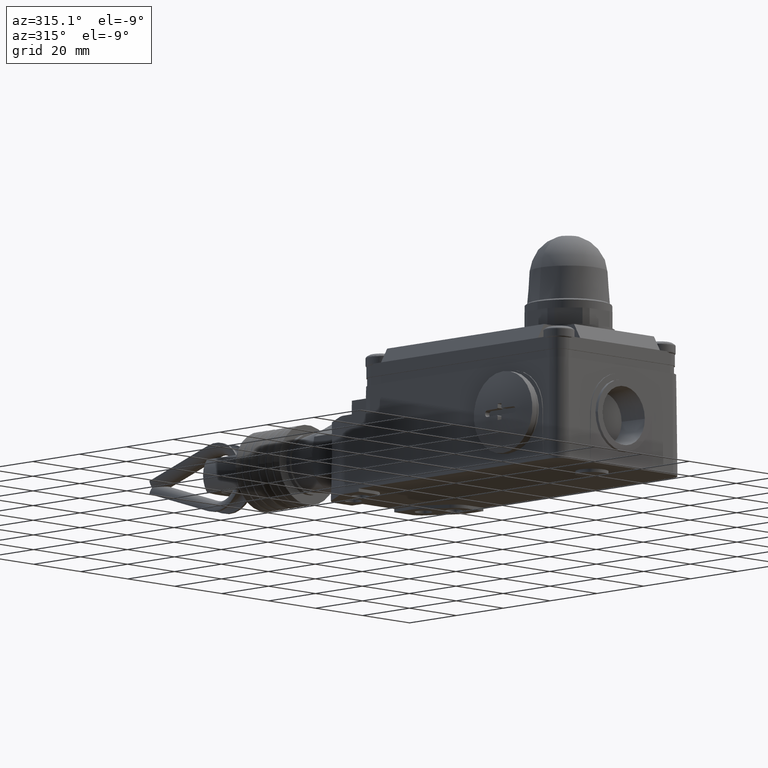
[diagram: clean part render]
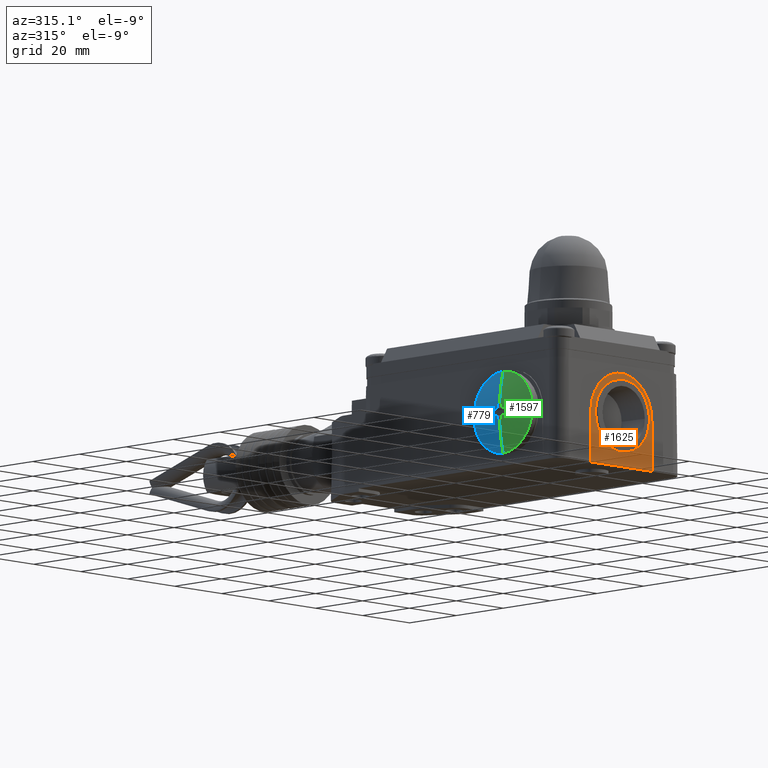
[diagram: same view with three faces highlighted in distinct colors, each labeled with its STEP entity id]
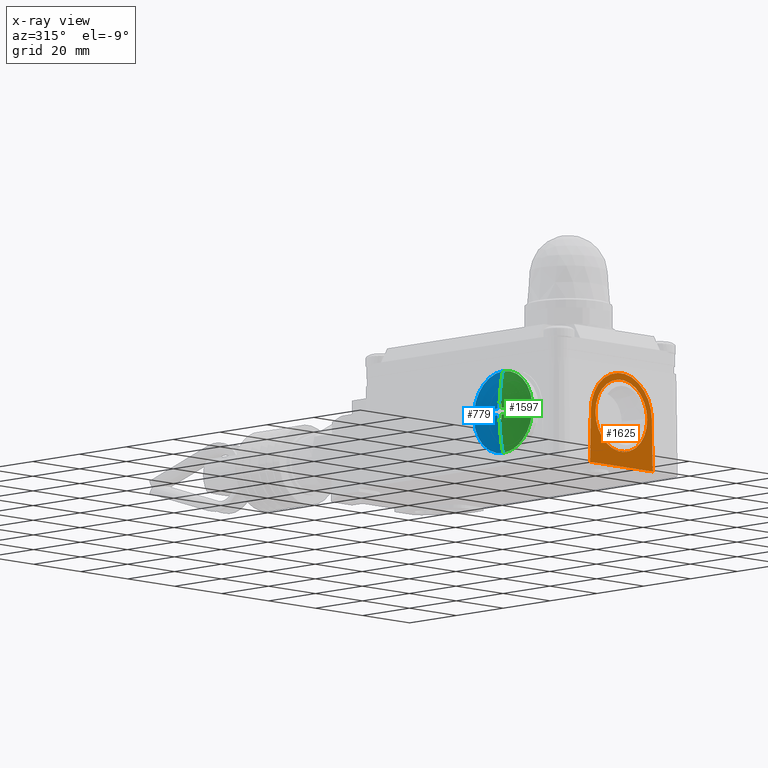
[diagram: x-ray of the same camera — body ghosted, the three highlighted faces saturated]
A machine part, auxiliary view with three faces highlighted in distinct colors.
The next image is the same camera in x-ray (body ghosted, the three faces saturated) — at least one of them is partly hidden behind the body in this view.
Their STEP definitions:

[orange] entity #1625 — the highlighted planar face has unit normal (0, -1, 0).
#1625=ADVANCED_FACE('',(#3332,#3333),#3334,.T.);
#3332=FACE_OUTER_BOUND('',#5109,.T.);
#3333=FACE_BOUND('',#5110,.T.);
#3334=PLANE('',#5111);
#5109=EDGE_LOOP('',(#9777,#9778,#9779,#9780));
#5110=EDGE_LOOP('',(#9781,#9782));
#5111=AXIS2_PLACEMENT_3D('',#9783,#9784,#9785);
#9777=ORIENTED_EDGE('',*,*,#12267,.F.);
#9778=ORIENTED_EDGE('',*,*,#12258,.F.);
#9779=ORIENTED_EDGE('',*,*,#12262,.T.);
#9780=ORIENTED_EDGE('',*,*,#12265,.F.);
#9781=ORIENTED_EDGE('',*,*,#12231,.T.);
#9782=ORIENTED_EDGE('',*,*,#10784,.T.);
#9783=CARTESIAN_POINT('',(31.9104298116297,0.998900000000006,12.9823884046874));
#9784=DIRECTION('',(0.0,-1.0,0.0));
#9785=DIRECTION('',(0.0,0.0,1.0));
#10784=EDGE_CURVE('',#12925,#12929,#12931,.T.);
#12231=EDGE_CURVE('',#12929,#12925,#15033,.T.);
#12258=EDGE_CURVE('',#15067,#15065,#15069,.T.);
#12262=EDGE_CURVE('',#15067,#15073,#15075,.T.);
#12265=EDGE_CURVE('',#15077,#15073,#15079,.T.);
#12267=EDGE_CURVE('',#15065,#15077,#15081,.T.);
#12925=VERTEX_POINT('',#15991);
#12929=VERTEX_POINT('',#15996);
#12931=CIRCLE('',#15999,11.0);
#15033=CIRCLE('',#19286,11.0);
#15065=VERTEX_POINT('',#19325);
#15067=VERTEX_POINT('',#19328);
#15069=LINE('',#19331,#19332);
#15073=VERTEX_POINT('',#19336);
#15075=CIRCLE('',#19339,13.0);
#15077=VERTEX_POINT('',#19341);
#15079=LINE('',#19344,#19345);
#15081=LINE('',#19347,#19348);
#15991=CARTESIAN_POINT('',(20.9104298117,0.998900000000006,16.5));
#15996=CARTESIAN_POINT('',(42.9104298117,0.998900000000006,16.5));
#15999=AXIS2_PLACEMENT_3D('',#20301,#20302,#20303);
#19286=AXIS2_PLACEMENT_3D('',#22108,#22109,#22110);
#19325=CARTESIAN_POINT('',(45.1829542317846,0.998900000000006,1.0005357078571));
#19328=CARTESIAN_POINT('',(44.9084498487,0.998900000000006,16.7268812837));
#19331=CARTESIAN_POINT('',(44.9084498487,0.998900000000006,16.7268812837));
#19332=VECTOR('',#22141,1.0);
#19336=CARTESIAN_POINT('',(18.9124097746,0.998900000000006,16.7268812837));
#19339=AXIS2_PLACEMENT_3D('',#22146,#22147,#22148);
#19341=CARTESIAN_POINT('',(18.6379053915154,0.998900000000006,1.0005357078571));
#19344=CARTESIAN_POINT('',(18.6378960407,0.998900000000006,1.0));
#19345=VECTOR('',#22150,1.0);
#19347=CARTESIAN_POINT('',(42.9309833180816,0.998900000000006,1.0005357078571));
#19348=VECTOR('',#22151,1.0);
#20301=CARTESIAN_POINT('',(31.9104298117,0.998900000000006,16.5));
#20302=DIRECTION('',(0.0,1.0,0.0));
#20303=DIRECTION('',(-1.0,0.0,0.0));
#22108=CARTESIAN_POINT('',(31.9104298117,0.998900000000006,16.5));
#22109=DIRECTION('',(0.0,1.0,0.0));
#22110=DIRECTION('',(-1.0,0.0,0.0));
#22141=DIRECTION('',(0.0174524064356722,0.0,-0.999847695156419));
#22146=CARTESIAN_POINT('',(31.9104298116,0.998900000000006,16.5));
#22147=DIRECTION('',(0.0,-1.0,0.0));
#22148=DIRECTION('',(0.999847695156361,0.0,0.0174524064390286));
#22150=DIRECTION('',(0.0174524064356722,0.0,0.999847695156419));
#22151=DIRECTION('',(-1.0,0.0,-0.0));

[blue] entity #779 — the highlighted toroidal blend (fillet) surface has major radius 0.0259 mm and minor (blend) radius 50.5256 mm.
#779=ADVANCED_FACE('',(#2030),#2031,.T.);
#2030=FACE_OUTER_BOUND('',#3807,.T.);
#2031=TOROIDAL_SURFACE('',#3808,-0.0259108420998881,50.525632715699);
#3807=EDGE_LOOP('',(#5956,#5957,#5958,#5959,#5960,#5961,#5962,#5963,#5964,#5965,#5966,#5967,#5968,#5969,#5970,#5971));
#3808=AXIS2_PLACEMENT_3D('',#5972,#5973,#5974);
#5956=ORIENTED_EDGE('',*,*,#10786,.F.);
#5957=ORIENTED_EDGE('',*,*,#10787,.T.);
#5958=ORIENTED_EDGE('',*,*,#10788,.F.);
#5959=ORIENTED_EDGE('',*,*,#10789,.T.);
#5960=ORIENTED_EDGE('',*,*,#10790,.T.);
#5961=ORIENTED_EDGE('',*,*,#10791,.T.);
#5962=ORIENTED_EDGE('',*,*,#10792,.T.);
#5963=ORIENTED_EDGE('',*,*,#10793,.T.);
#5964=ORIENTED_EDGE('',*,*,#10794,.T.);
#5965=ORIENTED_EDGE('',*,*,#10795,.T.);
#5966=ORIENTED_EDGE('',*,*,#10796,.T.);
#5967=ORIENTED_EDGE('',*,*,#10797,.T.);
#5968=ORIENTED_EDGE('',*,*,#10798,.T.);
#5969=ORIENTED_EDGE('',*,*,#10799,.T.);
#5970=ORIENTED_EDGE('',*,*,#10800,.T.);
#5971=ORIENTED_EDGE('',*,*,#10801,.T.);
#5972=CARTESIAN_POINT('',(50.5053895282991,21.04,16.5));
#5973=DIRECTION('',(-1.0,0.0,0.0));
#5974=DIRECTION('',(0.0,0.0,1.0));
#10786=EDGE_CURVE('',#12933,#12934,#12935,.T.);
#10787=EDGE_CURVE('',#12933,#12936,#12937,.T.);
#10788=EDGE_CURVE('',#12938,#12936,#12939,.T.);
#10789=EDGE_CURVE('',#12938,#12940,#12941,.T.);
#10790=EDGE_CURVE('',#12940,#12942,#12943,.T.);
#10791=EDGE_CURVE('',#12942,#12944,#12945,.T.);
#10792=EDGE_CURVE('',#12944,#12946,#12947,.T.);
#10793=EDGE_CURVE('',#12946,#12948,#12949,.T.);
#10794=EDGE_CURVE('',#12948,#12950,#12951,.T.);
#10795=EDGE_CURVE('',#12950,#12952,#12953,.T.);
#10796=EDGE_CURVE('',#12952,#12954,#12955,.T.);
#10797=EDGE_CURVE('',#12954,#12956,#12957,.T.);
#10798=EDGE_CURVE('',#12956,#12958,#12959,.T.);
#10799=EDGE_CURVE('',#12958,#12960,#12961,.T.);
#10800=EDGE_CURVE('',#12960,#12962,#12963,.T.);
#10801=EDGE_CURVE('',#12962,#12934,#12964,.T.);
#12933=VERTEX_POINT('',#16001);
#12934=VERTEX_POINT('',#16002);
#12935=CIRCLE('',#16003,50.525632715699);
#12936=VERTEX_POINT('',#16004);
#12937=CIRCLE('',#16005,12.4999999999711);
#12938=VERTEX_POINT('',#16006);
#12939=CIRCLE('',#16007,50.525632715699);
#12940=VERTEX_POINT('',#16008);
#12941=B_SPLINE_CURVE_WITH_KNOTS('',3,(#16009,#16010,#16011,#16012),.UNSPECIFIED.,.F.,.F.,(4,4),(149.427847892274,150.123642122216),.UNSPECIFIED.);
#12942=VERTEX_POINT('',#16013);
#12943=B_SPLINE_CURVE_WITH_KNOTS('',3,(#16014,#16015,#16016,#16017,#16018,#16019,#16020,#16021,#16022,#16023,#16024,#16025,#16026,#16027),.UNSPECIFIED.,.F.,.F.,(4,2,2,2,2,2,4),(-0.157466151884684,-0.12801596393201,-0.0984842951940586,-0.0630348877214051,-0.0304089725732229,-0.00190344631953657,1.22849924502254E-012),.UNSPECIFIED.);
#12944=VERTEX_POINT('',#16028);
#12945=B_SPLINE_CURVE_WITH_KNOTS('',3,(#16029,#16030,#16031,#16032),.UNSPECIFIED.,.F.,.F.,(4,4),(147.23414869565,148.301661006555),.UNSPECIFIED.);
#12946=VERTEX_POINT('',#16033);
#12947=B_SPLINE_CURVE_WITH_KNOTS('',3,(#16034,#16035,#16036,#16037,#16038,#16039,#16040,#16041,#16042,#16043,#16044,#16045,#16046,#16047),.UNSPECIFIED.,.F.,.F.,(4,2,2,2,2,2,4),(-0.472246517032027,-0.391869418198083,-0.331089147334466,-0.228508152538574,-0.118247399540123,-0.0190378395860754,0.0),.UNSPECIFIED.);
#12948=VERTEX_POINT('',#16048);
#12949=B_SPLINE_CURVE_WITH_KNOTS('',3,(#16049,#16050,#16051,#16052,#16053,#16054),.UNSPECIFIED.,.F.,.F.,(4,2,4),(150.665908785402,154.422390257034,154.91972924914),.UNSPECIFIED.);
#12950=VERTEX_POINT('',#16055);
#12951=B_SPLINE_CURVE_WITH_KNOTS('',3,(#16056,#16057,#16058,#16059,#16060,#16061,#16062,#16063,#16064,#16065,#16066,#16067),.UNSPECIFIED.,.F.,.F.,(4,2,2,2,2,4),(-1.50041911412863,-1.12941517836469,-0.902203556497305,-0.544054892547557,-0.168379874425492,-7.85144696576829E-016),.UNSPECIFIED.);
#12952=VERTEX_POINT('',#16068);
#12953=B_SPLINE_CURVE_WITH_KNOTS('',3,(#16069,#16070,#16071,#16072,#16073,#16074),.UNSPECIFIED.,.F.,.F.,(4,2,4),(148.347243708621,148.39722390963,148.447204110646),.UNSPECIFIED.);
#12954=VERTEX_POINT('',#16075);
#12955=B_SPLINE_CURVE_WITH_KNOTS('',3,(#16076,#16077,#16078,#16079,#16080,#16081,#16082,#16083,#16084,#16085,#16086,#16087,#16088,#16089),.UNSPECIFIED.,.F.,.F.,(4,2,2,2,2,2,4),(-1.49954129402927,-1.29373502223376,-1.08193881109099,-0.74121419425585,-0.423514013503926,-0.144367382391185,-2.19583588951706E-014),.UNSPECIFIED.);
#12956=VERTEX_POINT('',#16090);
#12957=B_SPLINE_CURVE_WITH_KNOTS('',3,(#16091,#16092,#16093,#16094,#16095,#16096),.UNSPECIFIED.,.F.,.F.,(4,2,4),(144.233487819901,144.730826812,148.487308283609),.UNSPECIFIED.);
#12958=VERTEX_POINT('',#16097);
#12959=B_SPLINE_CURVE_WITH_KNOTS('',3,(#16098,#16099,#16100,#16101,#16102,#16103,#16104,#16105,#16106,#16107,#16108,#16109,#16110,#16111),.UNSPECIFIED.,.F.,.F.,(4,2,2,2,2,2,4),(-0.472263496327327,-0.395899873286209,-0.333046230116394,-0.216672180154314,-0.11270420430178,-0.0191934446994534,-2.99658582244011E-013),.UNSPECIFIED.);
#12960=VERTEX_POINT('',#16112);
#12961=B_SPLINE_CURVE_WITH_KNOTS('',3,(#16113,#16114,#16115,#16116),.UNSPECIFIED.,.F.,.F.,(4,4),(150.871913873027,151.939426184048),.UNSPECIFIED.);
#12962=VERTEX_POINT('',#16117);
#12963=B_SPLINE_CURVE_WITH_KNOTS('',3,(#16118,#16119,#16120,#16121,#16122,#16123,#16124,#16125,#16126,#16127,#16128,#16129,#16130,#16131),.UNSPECIFIED.,.F.,.F.,(4,2,2,2,2,2,4),(-0.157505642024743,-0.129901438544045,-0.110580052742456,-0.0797203447919903,-0.0401137887014821,-0.00200113433333558,2.96227388298277E-019),.UNSPECIFIED.);
#12964=B_SPLINE_CURVE_WITH_KNOTS('',3,(#16132,#16133,#16134,#16135),.UNSPECIFIED.,.F.,.F.,(4,4),(148.732053662295,149.427847892274),.UNSPECIFIED.);
#16001=CARTESIAN_POINT('',(1.5570379840621,21.04,28.9999999999711));
#16002=CARTESIAN_POINT('',(0.0429348145272002,21.04,19.0));
#16003=AXIS2_PLACEMENT_3D('',#20304,#20305,#20306);
#16004=CARTESIAN_POINT('',(1.5570379840621,21.04,4.0000000000289));
#16005=AXIS2_PLACEMENT_3D('',#20307,#20308,#20309);
#16006=CARTESIAN_POINT('',(0.0429348145272002,21.04,14.0));
#16007=AXIS2_PLACEMENT_3D('',#20310,#20311,#20312);
#16008=CARTESIAN_POINT('',(0.0478395180888,21.74,14.0));
#16009=CARTESIAN_POINT('',(0.0429348145272002,21.04,14.0));
#16010=CARTESIAN_POINT('',(0.0429348145272037,21.2719314099807,14.0));
#16011=CARTESIAN_POINT('',(0.0445758115534893,21.5053076579603,14.0));
#16012=CARTESIAN_POINT('',(0.0478944321980812,21.7399992234912,14.0));
#16013=CARTESIAN_POINT('',(0.0444364030678983,21.84,14.1000000000409));
#16014=CARTESIAN_POINT('',(0.0478395180888,21.7400000000001,13.9999999999998));
#16015=CARTESIAN_POINT('',(0.0479770474741983,21.7498154659831,14.0000000017862));
#16016=CARTESIAN_POINT('',(0.0480444117752974,21.7595781372742,14.001445153906));
#16017=CARTESIAN_POINT('',(0.0480344206742984,21.7783948298362,14.007141335007));
#16018=CARTESIAN_POINT('',(0.0479567194598971,21.7873430991847,14.0113687182782));
#16019=CARTESIAN_POINT('',(0.0476313643208002,21.8053545517628,14.0233947126618));
#16020=CARTESIAN_POINT('',(0.0473553557804998,21.8139386445466,14.0316438116902));
#16021=CARTESIAN_POINT('',(0.046660910409198,21.8272756546485,14.049988841165));
#16022=CARTESIAN_POINT('',(0.0462602089021971,21.832190182235,14.0597627667026));
#16023=CARTESIAN_POINT('',(0.0454119059040998,21.8382709933499,14.0791928236266));
#16024=CARTESIAN_POINT('',(0.0449809136779997,21.8398014875437,14.0886095617394));
#16025=CARTESIAN_POINT('',(0.0444972198321985,21.8399939751668,14.0987325082864));
#16026=CARTESIAN_POINT('',(0.0444668539508974,21.8399999998851,14.099366249074));
#16027=CARTESIAN_POINT('',(0.0444364030679978,21.8400000000002,14.1000000000403));
#16028=CARTESIAN_POINT('',(0.00360948460039978,21.84,15.2));
#16029=CARTESIAN_POINT('',(0.0445175409033567,21.84,14.1000039020003));
#16030=CARTESIAN_POINT('',(0.0267560891520304,21.84,14.4693377704677));
#16031=CARTESIAN_POINT('',(0.0131695217792505,21.84,14.8361740053847));
#16032=CARTESIAN_POINT('',(0.00362602805295609,21.84,15.2000004339223));
#16033=CARTESIAN_POINT('',(0.00240098823239876,22.1399999999503,15.5));
#16034=CARTESIAN_POINT('',(0.00360948460039978,21.84,15.2000000000001));
#16035=CARTESIAN_POINT('',(0.00290833724669781,21.8399999999821,15.2267831997078));
#16036=CARTESIAN_POINT('',(0.00228948263199769,21.8435866989641,15.2534482153539));
#16037=CARTESIAN_POINT('',(0.001376527144199,21.8560192051207,15.2988191411795));
#16038=CARTESIAN_POINT('',(0.00104238439539728,21.863337617007,15.3177638360303));
#16039=CARTESIAN_POINT('',(0.000316760544098571,21.8879895896287,15.3663121859356));
#16040=CARTESIAN_POINT('',(4.92343597997547E-005,21.9085684416141,15.3939294213197));
#16041=CARTESIAN_POINT('',(-9.09995023015142E-005,21.9600005461279,15.4427982689239));
#16042=CARTESIAN_POINT('',(6.85503381987473E-005,21.9910705659514,15.4630032125413));
#16043=CARTESIAN_POINT('',(0.000797328977899525,22.0555578588438,15.4897637151086));
#16044=CARTESIAN_POINT('',(0.00131886544529891,22.0879844251593,15.497300416297));
#16045=CARTESIAN_POINT('',(0.00212509116829906,22.1273127035136,15.499798743654));
#16046=CARTESIAN_POINT('',(0.00226039327759864,22.1336556110591,15.5000000000031));
#16047=CARTESIAN_POINT('',(0.00240098823239876,22.1399999999503,15.4999999999999));
#16048=CARTESIAN_POINT('',(0.298376589157098,26.59,15.5));
#16049=CARTESIAN_POINT('',(0.00243562657108498,22.1399992303674,15.5));
#16050=CARTESIAN_POINT('',(0.0307884574976427,23.4161385199883,15.5));
#16051=CARTESIAN_POINT('',(0.108864826446588,24.7304249929605,15.5));
#16052=CARTESIAN_POINT('',(0.260112425524262,26.2369324055936,15.5));
#16053=CARTESIAN_POINT('',(0.278773229110435,26.4133484564428,15.5));
#16054=CARTESIAN_POINT('',(0.298409984758564,26.5899962876348,15.5));
#16055=CARTESIAN_POINT('',(0.4029989761795,27.54,16.4500000000071));
#16056=CARTESIAN_POINT('',(0.298376589157098,26.59,15.5));
#16057=CARTESIAN_POINT('',(0.3120289436342,26.7129385546031,15.5000000000129));
#16058=CARTESIAN_POINT('',(0.325538154503299,26.8347697210504,15.52386403416));
#16059=CARTESIAN_POINT('',(0.345875467474297,27.018483568118,15.5987771738853));
#16060=CARTESIAN_POINT('',(0.353194032007298,27.0846708162016,15.6354491723069));
#16061=CARTESIAN_POINT('',(0.370599410710497,27.2422980921566,15.7491786939956));
#16062=CARTESIAN_POINT('',(0.3796983230115,27.3249273646493,15.8363338449669));
#16063=CARTESIAN_POINT('',(0.394165388165899,27.4568926778293,16.0418018955384));
#16064=CARTESIAN_POINT('',(0.399184159237599,27.5030797888113,16.1593778724798));
#16065=CARTESIAN_POINT('',(0.402558144401699,27.5350260188494,16.3378619563342));
#16066=CARTESIAN_POINT('',(0.403055211346299,27.5399999999945,16.3938734033706));
#16067=CARTESIAN_POINT('',(0.4029989761795,27.54,16.4500000000071));
#16068=CARTESIAN_POINT('',(0.4029989761795,27.54,16.55));
#16069=CARTESIAN_POINT('',(0.402999381921273,27.54,16.4500000004202));
#16070=CARTESIAN_POINT('',(0.402982408351562,27.54,16.4666732528146));
#16071=CARTESIAN_POINT('',(0.402973927824398,27.54,16.483339932997));
#16072=CARTESIAN_POINT('',(0.402973927824394,27.54,16.5166600670054));
#16073=CARTESIAN_POINT('',(0.402982408351555,27.54,16.5333267471901));
#16074=CARTESIAN_POINT('',(0.402999381921269,27.54,16.549999999587));
#16075=CARTESIAN_POINT('',(0.298376589156298,26.5899999999928,17.5));
#16076=CARTESIAN_POINT('',(0.4029989761795,27.54,16.55));
#16077=CARTESIAN_POINT('',(0.4030676993928,27.5399999999928,16.6185905331645));
#16078=CARTESIAN_POINT('',(0.402310051766598,27.5325716226188,16.6869706872566));
#16079=CARTESIAN_POINT('',(0.399124260204399,27.5027009220473,16.8228680223147));
#16080=CARTESIAN_POINT('',(0.396658498963699,27.4799250285832,16.8898608791513));
#16081=CARTESIAN_POINT('',(0.3881333383334,27.4017587494987,17.0563747520736));
#16082=CARTESIAN_POINT('',(0.380870830927698,27.3356033087071,17.149494291603));
#16083=CARTESIAN_POINT('',(0.363648949515998,27.179299600075,17.3025755121252));
#16084=CARTESIAN_POINT('',(0.354025465726497,27.0921677332577,17.3632839920719));
#16085=CARTESIAN_POINT('',(0.334234259754098,26.9132931645022,17.44808324389));
#16086=CARTESIAN_POINT('',(0.3243775234737,26.8243259626601,17.4752818718719));
#16087=CARTESIAN_POINT('',(0.308989063408898,26.6855922913666,17.496388062065));
#16088=CARTESIAN_POINT('',(0.303687949481599,26.6378284505704,17.4999999999953));
#16089=CARTESIAN_POINT('',(0.298376589156199,26.5899999999928,17.5));
#16090=CARTESIAN_POINT('',(0.0024009882335001,22.14,17.5));
#16091=CARTESIAN_POINT('',(0.298409984757775,26.5899962876276,17.5));
#16092=CARTESIAN_POINT('',(0.278773229109937,26.413348456438,17.5));
#16093=CARTESIAN_POINT('',(0.260112425524024,26.2369324055912,17.5));
#16094=CARTESIAN_POINT('',(0.108864826447402,24.7304249929686,17.5));
#16095=CARTESIAN_POINT('',(0.0307884574985984,23.4161385200043,17.5));
#16096=CARTESIAN_POINT('',(0.00243562657161078,22.1399992303908,17.5));
#16097=CARTESIAN_POINT('',(0.00360948459909949,21.84,17.7999999999503));
#16098=CARTESIAN_POINT('',(0.0024009882335001,22.1400000000001,17.5));
#16099=CARTESIAN_POINT('',(0.00183704326669698,22.1145518166897,17.4999999999831));
#16100=CARTESIAN_POINT('',(0.00135997535019783,22.089205051584,17.5032380501347));
#16101=CARTESIAN_POINT('',(0.000669916114997449,22.0442953228303,17.5149044630191));
#16102=CARTESIAN_POINT('',(0.000427039051597689,22.0246261108184,17.5222811079696));
#16103=CARTESIAN_POINT('',(-5.81491748015139E-005,21.9711879574702,17.5489877695052));
#16104=CARTESIAN_POINT('',(-0.00011925167290272,21.9401800888301,17.5728949421232));
#16105=CARTESIAN_POINT('',(0.000252415155397756,21.8917160823938,17.6280811747758));
#16106=CARTESIAN_POINT('',(0.00063040535199832,21.873533822334,17.6578856620764));
#16107=CARTESIAN_POINT('',(0.00170070018619839,21.8494292311524,17.7191300617747));
#16108=CARTESIAN_POINT('',(0.00235102498549722,21.8426047016856,17.749730446859));
#16109=CARTESIAN_POINT('',(0.00327918323639764,21.8402045200098,17.7872102690268));
#16110=CARTESIAN_POINT('',(0.0034420559603987,21.8399999999969,17.7936043762011));
#16111=CARTESIAN_POINT('',(0.00360948459909949,21.8400000000001,17.7999999999504));
#16112=CARTESIAN_POINT('',(0.0444364030698985,21.84,18.9));
#16113=CARTESIAN_POINT('',(0.00362602805093815,21.84,17.7999995660007));
#16114=CARTESIAN_POINT('',(0.0131695217776837,21.84,18.1638259945769));
#16115=CARTESIAN_POINT('',(0.0267560891517817,21.84,18.5306622295333));
#16116=CARTESIAN_POINT('',(0.044517540905332,21.84,18.8999960980406));
#16117=CARTESIAN_POINT('',(0.0478395180892974,21.7400000000374,19.0));
#16118=CARTESIAN_POINT('',(0.0444364030698985,21.8399999999999,18.8999999999996));
#16119=CARTESIAN_POINT('',(0.0448780206285981,21.8400000094115,18.9091910452327));
#16120=CARTESIAN_POINT('',(0.0452998169318981,21.8387328877978,18.9183395111074));
#16121=CARTESIAN_POINT('',(0.0459628543518988,21.8344841427003,18.9333790247221));
#16122=CARTESIAN_POINT('',(0.0462187570268995,21.8321409092785,18.9393888956195));
#16123=CARTESIAN_POINT('',(0.0468296929582976,21.8245965030708,18.9543057643128));
#16124=CARTESIAN_POINT('',(0.0471490257006977,21.8185692068509,18.9627107671315));
#16125=CARTESIAN_POINT('',(0.0477236097801992,21.8021201810805,18.9794687877574));
#16126=CARTESIAN_POINT('',(0.0479293667644001,21.7910995845664,18.9869662642025));
#16127=CARTESIAN_POINT('',(0.0480796402214985,21.7672384318765,18.9970539212281));
#16128=CARTESIAN_POINT('',(0.0480323356933994,21.7547013946628,18.9997258322981));
#16129=CARTESIAN_POINT('',(0.0478578881848968,21.7413339463032,18.9999933284377));
#16130=CARTESIAN_POINT('',(0.0478488635089995,21.7406669793465,19.0000000006828));
#16131=CARTESIAN_POINT('',(0.0478395180892974,21.7400000000374,19.0000000000001));
#16132=CARTESIAN_POINT('',(0.047894432198607,21.7399992235286,19.0));
#16133=CARTESIAN_POINT('',(0.0445758115536563,21.5053076579851,19.0));
#16134=CARTESIAN_POINT('',(0.0429348145272002,21.271931409993,19.0));
#16135=CARTESIAN_POINT('',(0.0429348145272002,21.04,19.0));
#20304=CARTESIAN_POINT('',(50.5053895282991,21.04,16.4740891579001));
#20305=DIRECTION('',(0.0,-1.0,0.0));
#20306=DIRECTION('',(0.0,0.0,1.0));
#20307=CARTESIAN_POINT('',(1.5570379840621,21.04,16.5));
#20308=DIRECTION('',(-1.0,0.0,0.0));
#20309=DIRECTION('',(0.0,0.0,1.0));
#20310=CARTESIAN_POINT('',(50.5053895282991,21.04,16.5259108420999));
#20311=DIRECTION('',(0.0,-1.0,0.0));
#20312=DIRECTION('',(0.0,0.0,-1.0));

[green] entity #1597 — the highlighted toroidal blend (fillet) surface has major radius 0.0259 mm and minor (blend) radius 50.5256 mm.
#1597=ADVANCED_FACE('',(#3288),#3289,.T.);
#3288=FACE_OUTER_BOUND('',#5065,.T.);
#3289=TOROIDAL_SURFACE('',#5066,-0.0259108420998881,50.525632715699);
#5065=EDGE_LOOP('',(#9659,#9660,#9661,#9662,#9663,#9664,#9665,#9666,#9667,#9668,#9669,#9670,#9671,#9672,#9673,#9674));
#5066=AXIS2_PLACEMENT_3D('',#9675,#9676,#9677);
#9659=ORIENTED_EDGE('',*,*,#10786,.T.);
#9660=ORIENTED_EDGE('',*,*,#12167,.T.);
#9661=ORIENTED_EDGE('',*,*,#12169,.T.);
#9662=ORIENTED_EDGE('',*,*,#12173,.T.);
#9663=ORIENTED_EDGE('',*,*,#12177,.T.);
#9664=ORIENTED_EDGE('',*,*,#12181,.T.);
#9665=ORIENTED_EDGE('',*,*,#12185,.T.);
#9666=ORIENTED_EDGE('',*,*,#12189,.T.);
#9667=ORIENTED_EDGE('',*,*,#12193,.T.);
#9668=ORIENTED_EDGE('',*,*,#12197,.T.);
#9669=ORIENTED_EDGE('',*,*,#12201,.T.);
#9670=ORIENTED_EDGE('',*,*,#12205,.T.);
#9671=ORIENTED_EDGE('',*,*,#12209,.T.);
#9672=ORIENTED_EDGE('',*,*,#12213,.T.);
#9673=ORIENTED_EDGE('',*,*,#10788,.T.);
#9674=ORIENTED_EDGE('',*,*,#12228,.T.);
#9675=CARTESIAN_POINT('',(50.5053895282991,21.04,16.5));
#9676=DIRECTION('',(-1.0,0.0,0.0));
#9677=DIRECTION('',(0.0,0.0,1.0));
#10786=EDGE_CURVE('',#12933,#12934,#12935,.T.);
#10788=EDGE_CURVE('',#12938,#12936,#12939,.T.);
#12167=EDGE_CURVE('',#12934,#14942,#14944,.T.);
#12169=EDGE_CURVE('',#14942,#14946,#14947,.T.);
#12173=EDGE_CURVE('',#14946,#14952,#14953,.T.);
#12177=EDGE_CURVE('',#14952,#14958,#14959,.T.);
#12181=EDGE_CURVE('',#14958,#14964,#14965,.T.);
#12185=EDGE_CURVE('',#14964,#14970,#14971,.T.);
#12189=EDGE_CURVE('',#14970,#14976,#14977,.T.);
#12193=EDGE_CURVE('',#14976,#14982,#14983,.T.);
#12197=EDGE_CURVE('',#14982,#14988,#14989,.T.);
#12201=EDGE_CURVE('',#14988,#14994,#14995,.T.);
#12205=EDGE_CURVE('',#14994,#15000,#15001,.T.);
#12209=EDGE_CURVE('',#15000,#15006,#15007,.T.);
#12213=EDGE_CURVE('',#15006,#12938,#15012,.T.);
#12228=EDGE_CURVE('',#12936,#12933,#15030,.T.);
#12933=VERTEX_POINT('',#16001);
#12934=VERTEX_POINT('',#16002);
#12935=CIRCLE('',#16003,50.525632715699);
#12936=VERTEX_POINT('',#16004);
#12938=VERTEX_POINT('',#16006);
#12939=CIRCLE('',#16007,50.525632715699);
#14942=VERTEX_POINT('',#19070);
#14944=B_SPLINE_CURVE_WITH_KNOTS('',3,(#19073,#19074,#19075,#19076),.UNSPECIFIED.,.F.,.F.,(4,4),(149.427847892274,150.123642122216),.UNSPECIFIED.);
#14946=VERTEX_POINT('',#19078);
#14947=B_SPLINE_CURVE_WITH_KNOTS('',3,(#19079,#19080,#19081,#19082,#19083,#19084,#19085,#19086,#19087,#19088,#19089,#19090,#19091,#19092),.UNSPECIFIED.,.F.,.F.,(4,2,2,2,2,2,4),(-0.157466151315368,-0.128015963468189,-0.0984842948378138,-0.0630348874944077,-0.0304089724650827,-0.00190344631499732,1.1087331975706E-012),.UNSPECIFIED.);
#14952=VERTEX_POINT('',#19098);
#14953=B_SPLINE_CURVE_WITH_KNOTS('',3,(#19099,#19100,#19101,#19102),.UNSPECIFIED.,.F.,.F.,(4,4),(147.23414869565,148.301661006604),.UNSPECIFIED.);
#14958=VERTEX_POINT('',#19109);
#14959=B_SPLINE_CURVE_WITH_KNOTS('',3,(#19110,#19111,#19112,#19113,#19114,#19115,#19116,#19117,#19118,#19119,#19120,#19121,#19122,#19123),.UNSPECIFIED.,.F.,.F.,(4,2,2,2,2,2,4),(-0.472246517391618,-0.391869418510966,-0.33108914760465,-0.228508152731929,-0.118247399637018,-0.0190378395960355,1.98903365015838E-013),.UNSPECIFIED.);
#14964=VERTEX_POINT('',#19129);
#14965=B_SPLINE_CURVE_WITH_KNOTS('',3,(#19130,#19131,#19132,#19133,#19134,#19135),.UNSPECIFIED.,.F.,.F.,(4,2,4),(150.665908785402,154.422390257034,154.91972924914),.UNSPECIFIED.);
#14970=VERTEX_POINT('',#19142);
#14971=B_SPLINE_CURVE_WITH_KNOTS('',3,(#19143,#19144,#19145,#19146,#19147,#19148,#19149,#19150,#19151,#19152,#19153,#19154),.UNSPECIFIED.,.F.,.F.,(4,2,2,2,2,4),(-1.50041911411101,-1.12941517835173,-0.902203556487165,-0.544054892542035,-0.168379874424781,-1.9940182770121E-016),.UNSPECIFIED.);
#14976=VERTEX_POINT('',#19160);
#14977=B_SPLINE_CURVE_WITH_KNOTS('',3,(#19161,#19162,#19163,#19164,#19165,#19166),.UNSPECIFIED.,.F.,.F.,(4,2,4),(148.347243708621,148.39722390963,148.447204110646),.UNSPECIFIED.);
#14982=VERTEX_POINT('',#19173);
#14983=B_SPLINE_CURVE_WITH_KNOTS('',3,(#19174,#19175,#19176,#19177,#19178,#19179,#19180,#19181,#19182,#19183,#19184,#19185,#19186,#19187),.UNSPECIFIED.,.F.,.F.,(4,2,2,2,2,2,4),(-1.49954129403462,-1.29373502223727,-1.08193881109372,-0.741214194257886,-0.423514013504968,-0.144367382391451,0.0),.UNSPECIFIED.);
#14988=VERTEX_POINT('',#19193);
#14989=B_SPLINE_CURVE_WITH_KNOTS('',3,(#19194,#19195,#19196,#19197,#19198,#19199),.UNSPECIFIED.,.F.,.F.,(4,2,4),(144.233487819901,144.730826812,148.487308283609),.UNSPECIFIED.);
#14994=VERTEX_POINT('',#19206);
#14995=B_SPLINE_CURVE_WITH_KNOTS('',3,(#19207,#19208,#19209,#19210,#19211,#19212,#19213,#19214,#19215,#19216,#19217,#19218,#19219,#19220),.UNSPECIFIED.,.F.,.F.,(4,2,2,2,2,2,4),(-0.472263496421618,-0.395899873365003,-0.333046230182539,-0.216672180196811,-0.112704204323186,-0.0191934447020002,-1.99771914656015E-013),.UNSPECIFIED.);
#15000=VERTEX_POINT('',#19226);
#15001=B_SPLINE_CURVE_WITH_KNOTS('',3,(#19227,#19228,#19229,#19230),.UNSPECIFIED.,.F.,.F.,(4,4),(150.871913873027,151.939426184048),.UNSPECIFIED.);
#15006=VERTEX_POINT('',#19237);
#15007=B_SPLINE_CURVE_WITH_KNOTS('',3,(#19238,#19239,#19240,#19241,#19242,#19243,#19244,#19245,#19246,#19247,#19248,#19249,#19250,#19251),.UNSPECIFIED.,.F.,.F.,(4,2,2,2,2,2,4),(-0.157505638960012,-0.129901436021784,-0.110580050597242,-0.0797203432489571,-0.0401137879315467,-0.00200113430733025,0.0),.UNSPECIFIED.);
#15012=B_SPLINE_CURVE_WITH_KNOTS('',3,(#19257,#19258,#19259,#19260),.UNSPECIFIED.,.F.,.F.,(4,4),(148.732053662295,149.427847892274),.UNSPECIFIED.);
#15030=CIRCLE('',#19283,12.4999999999711);
#16001=CARTESIAN_POINT('',(1.5570379840621,21.04,28.9999999999711));
#16002=CARTESIAN_POINT('',(0.0429348145272002,21.04,19.0));
#16003=AXIS2_PLACEMENT_3D('',#20304,#20305,#20306);
#16004=CARTESIAN_POINT('',(1.5570379840621,21.04,4.0000000000289));
#16006=CARTESIAN_POINT('',(0.0429348145272002,21.04,14.0));
#16007=AXIS2_PLACEMENT_3D('',#20310,#20311,#20312);
#19070=CARTESIAN_POINT('',(0.0478395180888,20.34,19.0));
#19073=CARTESIAN_POINT('',(0.0429348145272002,21.04,19.0));
#19074=CARTESIAN_POINT('',(0.0429348145272037,20.8080685900193,19.0));
#19075=CARTESIAN_POINT('',(0.0445758115534893,20.5746923420397,19.0));
#19076=CARTESIAN_POINT('',(0.0478944321980812,20.3400007765088,19.0));
#19078=CARTESIAN_POINT('',(0.0444364030678983,20.24,18.8999999999591));
#19079=CARTESIAN_POINT('',(0.0478395180888,20.34,19.0000000000001));
#19080=CARTESIAN_POINT('',(0.0479770474741983,20.3301845340179,18.9999999982136));
#19081=CARTESIAN_POINT('',(0.0480444117752974,20.3204218627263,18.9985548460941));
#19082=CARTESIAN_POINT('',(0.0480344206742984,20.3016051701638,18.992858664993));
#19083=CARTESIAN_POINT('',(0.0479567194598971,20.2926569008153,18.9886312817218));
#19084=CARTESIAN_POINT('',(0.0476313643208002,20.2746454482372,18.9766052873382));
#19085=CARTESIAN_POINT('',(0.0473553557804998,20.2660613554535,18.9683561883098));
#19086=CARTESIAN_POINT('',(0.046660910409198,20.2527243453514,18.950011158835));
#19087=CARTESIAN_POINT('',(0.0462602089021971,20.247809817765,18.9402372332973));
#19088=CARTESIAN_POINT('',(0.0454119059040998,20.2417290066502,18.9208071763734));
#19089=CARTESIAN_POINT('',(0.0449809136779997,20.2401985124563,18.9113904382607));
#19090=CARTESIAN_POINT('',(0.0444972198321985,20.2400060248332,18.9012674917128));
#19091=CARTESIAN_POINT('',(0.044466853950798,20.2400000001149,18.9006337509244));
#19092=CARTESIAN_POINT('',(0.0444364030679978,20.2399999999998,18.8999999999597));
#19098=CARTESIAN_POINT('',(0.00360948459909949,20.24,17.7999999999503));
#19099=CARTESIAN_POINT('',(0.0445175409033567,20.24,18.8999960979997));
#19100=CARTESIAN_POINT('',(0.0267560891512204,20.24,18.5306622295155));
#19101=CARTESIAN_POINT('',(0.0131695217780106,20.24,18.1638259945819));
#19102=CARTESIAN_POINT('',(0.00362602805164869,20.24,17.799999566028));
#19109=CARTESIAN_POINT('',(0.00240098823239876,19.9400000000497,17.5));
#19110=CARTESIAN_POINT('',(0.00360948459909949,20.24,17.7999999999503));
#19111=CARTESIAN_POINT('',(0.0029083372456995,20.2400000000134,17.773216800251));
#19112=CARTESIAN_POINT('',(0.0022894826312978,20.2364133010293,17.7465517846133));
#19113=CARTESIAN_POINT('',(0.00137652714379755,20.2239807948718,17.7011808587999));
#19114=CARTESIAN_POINT('',(0.00104238439509885,20.2166623829856,17.6822361639531));
#19115=CARTESIAN_POINT('',(0.000316760543999095,20.1920104103653,17.6336878140563));
#19116=CARTESIAN_POINT('',(4.92343597997547E-005,20.1714315583819,17.6060705786762));
#19117=CARTESIAN_POINT('',(-9.09995023015142E-005,20.119999453871,17.5572017310753));
#19118=CARTESIAN_POINT('',(6.85503381987473E-005,20.0889294340475,17.5369967874581));
#19119=CARTESIAN_POINT('',(0.000797328977999001,20.024442141155,17.5102362848911));
#19120=CARTESIAN_POINT('',(0.00131886544529891,19.9920155748395,17.5026995837028));
#19121=CARTESIAN_POINT('',(0.00212509116819959,19.9526872964875,17.5002012563461));
#19122=CARTESIAN_POINT('',(0.00226039327759864,19.9463443889444,17.4999999999968));
#19123=CARTESIAN_POINT('',(0.00240098823239876,19.9400000000498,17.4999999999999));
#19129=CARTESIAN_POINT('',(0.298376589157098,15.49,17.5));
#19130=CARTESIAN_POINT('',(0.00243562657108143,19.9400007696326,17.5));
#19131=CARTESIAN_POINT('',(0.0307884574976427,18.6638614800117,17.5));
#19132=CARTESIAN_POINT('',(0.108864826446588,17.3495750070395,17.5));
#19133=CARTESIAN_POINT('',(0.260112425524262,15.8430675944064,17.5));
#19134=CARTESIAN_POINT('',(0.278773229110442,15.6666515435572,17.5));
#19135=CARTESIAN_POINT('',(0.298409984758571,15.4900037123652,17.5));
#19142=CARTESIAN_POINT('',(0.4029989761795,14.54,16.5499999999929));
#19143=CARTESIAN_POINT('',(0.298376589157098,15.49,17.5));
#19144=CARTESIAN_POINT('',(0.3120289436342,15.3670614453969,17.4999999999871));
#19145=CARTESIAN_POINT('',(0.325538154503299,15.2452302789496,17.47613596584));
#19146=CARTESIAN_POINT('',(0.345875467474297,15.061516431882,17.4012228261147));
#19147=CARTESIAN_POINT('',(0.353194032007298,14.9953291837984,17.3645508276931));
#19148=CARTESIAN_POINT('',(0.370599410710497,14.8377019078434,17.2508213060044));
#19149=CARTESIAN_POINT('',(0.3796983230115,14.7550726353507,17.1636661550332));
#19150=CARTESIAN_POINT('',(0.394165388165899,14.6231073221707,16.9581981044616));
#19151=CARTESIAN_POINT('',(0.399184159237599,14.5769202111887,16.8406221275202));
#19152=CARTESIAN_POINT('',(0.402558144401699,14.5449739811506,16.6621380436653));
#19153=CARTESIAN_POINT('',(0.403055211346299,14.5400000000055,16.6061265966291));
#19154=CARTESIAN_POINT('',(0.4029989761795,14.54,16.5499999999929));
#19160=CARTESIAN_POINT('',(0.4029989761795,14.54,16.45));
#19161=CARTESIAN_POINT('',(0.402999381921273,14.54,16.5499999995798));
#19162=CARTESIAN_POINT('',(0.402982408351562,14.54,16.5333267471854));
#19163=CARTESIAN_POINT('',(0.402973927824398,14.54,16.516660067003));
#19164=CARTESIAN_POINT('',(0.402973927824394,14.54,16.4833399329946));
#19165=CARTESIAN_POINT('',(0.402982408351555,14.54,16.4666732528099));
#19166=CARTESIAN_POINT('',(0.402999381921269,14.54,16.450000000413));
#19173=CARTESIAN_POINT('',(0.298376589156298,15.4900000000072,15.5));
#19174=CARTESIAN_POINT('',(0.4029989761795,14.54,16.45));
#19175=CARTESIAN_POINT('',(0.4030676993928,14.5400000000072,16.3814094668356));
#19176=CARTESIAN_POINT('',(0.402310051766598,14.5474283773812,16.3130293127437));
#19177=CARTESIAN_POINT('',(0.399124260204399,14.5772990779527,16.1771319776854));
#19178=CARTESIAN_POINT('',(0.396658498963699,14.6000749714167,16.110139120849));
#19179=CARTESIAN_POINT('',(0.3881333383335,14.6782412505013,15.9436252479264));
#19180=CARTESIAN_POINT('',(0.380870830927698,14.7443966912929,15.8505057083969));
#19181=CARTESIAN_POINT('',(0.363648949515998,14.9007003999249,15.6974244878748));
#19182=CARTESIAN_POINT('',(0.354025465726497,14.9878322667422,15.6367160079282));
#19183=CARTESIAN_POINT('',(0.334234259754098,15.1667068354977,15.55191675611));
#19184=CARTESIAN_POINT('',(0.3243775234737,15.2556740373398,15.5247181281281));
#19185=CARTESIAN_POINT('',(0.308989063408898,15.3944077086333,15.503611937935));
#19186=CARTESIAN_POINT('',(0.303687949481699,15.4421715494294,15.5000000000047));
#19187=CARTESIAN_POINT('',(0.298376589156298,15.4900000000072,15.5));
#19193=CARTESIAN_POINT('',(0.0024009882335001,19.94,15.5));
#19194=CARTESIAN_POINT('',(0.298409984757775,15.4900037123724,15.5));
#19195=CARTESIAN_POINT('',(0.278773229109937,15.666651543562,15.5));
#19196=CARTESIAN_POINT('',(0.260112425524024,15.8430675944088,15.5));
#19197=CARTESIAN_POINT('',(0.108864826447402,17.3495750070314,15.5));
#19198=CARTESIAN_POINT('',(0.0307884574985984,18.6638614799957,15.5));
#19199=CARTESIAN_POINT('',(0.00243562657161078,19.9400007696093,15.5));
#19206=CARTESIAN_POINT('',(0.00360948459909949,20.24,15.2000000000497));
#19207=CARTESIAN_POINT('',(0.0024009882335001,19.9399999999999,15.5));
#19208=CARTESIAN_POINT('',(0.00183704326669698,19.9654481833101,15.5000000000169));
#19209=CARTESIAN_POINT('',(0.00135997535019783,19.9907949484159,15.4967619498653));
#19210=CARTESIAN_POINT('',(0.000669916114997449,20.0357046771697,15.4850955369809));
#19211=CARTESIAN_POINT('',(0.000427039051597689,20.0553738891816,15.4777188920304));
#19212=CARTESIAN_POINT('',(-5.81491748015139E-005,20.1088120425299,15.4510122304948));
#19213=CARTESIAN_POINT('',(-0.00011925167290272,20.1398199111699,15.4271050578768));
#19214=CARTESIAN_POINT('',(0.000252415155397756,20.1882839176062,15.3719188252243));
#19215=CARTESIAN_POINT('',(0.00063040535199832,20.206466177666,15.3421143379236));
#19216=CARTESIAN_POINT('',(0.00170070018619839,20.2305707688476,15.2808699382253));
#19217=CARTESIAN_POINT('',(0.00235102498549722,20.2373952983144,15.250269553141));
#19218=CARTESIAN_POINT('',(0.00327918323629817,20.2397954799901,15.2127897309737));
#19219=CARTESIAN_POINT('',(0.0034420559603987,20.2400000000032,15.2063956237998));
#19220=CARTESIAN_POINT('',(0.00360948459909949,20.2399999999999,15.2000000000496));
#19226=CARTESIAN_POINT('',(0.0444364030698985,20.24,14.1));
#19227=CARTESIAN_POINT('',(0.00362602805093815,20.24,15.2000004339993));
#19228=CARTESIAN_POINT('',(0.0131695217776837,20.24,14.8361740054231));
#19229=CARTESIAN_POINT('',(0.0267560891517817,20.24,14.4693377704667));
#19230=CARTESIAN_POINT('',(0.044517540905332,20.24,14.1000039019594));
#19237=CARTESIAN_POINT('',(0.0478395180892974,20.3399999999626,14.0000000000001));
#19238=CARTESIAN_POINT('',(0.0444364030698985,20.2399999999999,14.0999999999996));
#19239=CARTESIAN_POINT('',(0.0448780206287971,20.2399999905883,14.0908089547648));
#19240=CARTESIAN_POINT('',(0.0452998169319976,20.2412671122026,14.0816604888914));
#19241=CARTESIAN_POINT('',(0.0459628543518988,20.2455158572997,14.0666209752779));
#19242=CARTESIAN_POINT('',(0.0462187570268995,20.2478590907215,14.0606111043805));
#19243=CARTESIAN_POINT('',(0.0468296929582976,20.2554034969292,14.0456942356872));
#19244=CARTESIAN_POINT('',(0.0471490257006977,20.2614307931491,14.0372892328685));
#19245=CARTESIAN_POINT('',(0.0477236097801992,20.2778798189194,14.0205312122427));
#19246=CARTESIAN_POINT('',(0.0479293667644001,20.2889004154336,14.0130337357975));
#19247=CARTESIAN_POINT('',(0.0480796402214985,20.3127615681236,14.0029460787718));
#19248=CARTESIAN_POINT('',(0.0480323356933994,20.3252986053372,14.0002741677019));
#19249=CARTESIAN_POINT('',(0.0478578881847973,20.3386660537012,14.0000066715622));
#19250=CARTESIAN_POINT('',(0.0478488635089001,20.3393330206622,13.9999999993173));
#19251=CARTESIAN_POINT('',(0.0478395180892974,20.3399999999626,14.0));
#19257=CARTESIAN_POINT('',(0.047894432198607,20.3400007764714,14.0));
#19258=CARTESIAN_POINT('',(0.0445758115536563,20.5746923420149,14.0));
#19259=CARTESIAN_POINT('',(0.0429348145272002,20.808068590007,14.0));
#19260=CARTESIAN_POINT('',(0.0429348145272002,21.04,14.0));
#19283=AXIS2_PLACEMENT_3D('',#22105,#22106,#22107);
#20304=CARTESIAN_POINT('',(50.5053895282991,21.04,16.4740891579001));
#20305=DIRECTION('',(0.0,-1.0,0.0));
#20306=DIRECTION('',(0.0,0.0,1.0));
#20310=CARTESIAN_POINT('',(50.5053895282991,21.04,16.5259108420999));
#20311=DIRECTION('',(0.0,-1.0,0.0));
#20312=DIRECTION('',(0.0,0.0,-1.0));
#22105=CARTESIAN_POINT('',(1.5570379840621,21.04,16.5));
#22106=DIRECTION('',(-1.0,0.0,0.0));
#22107=DIRECTION('',(0.0,0.0,1.0));